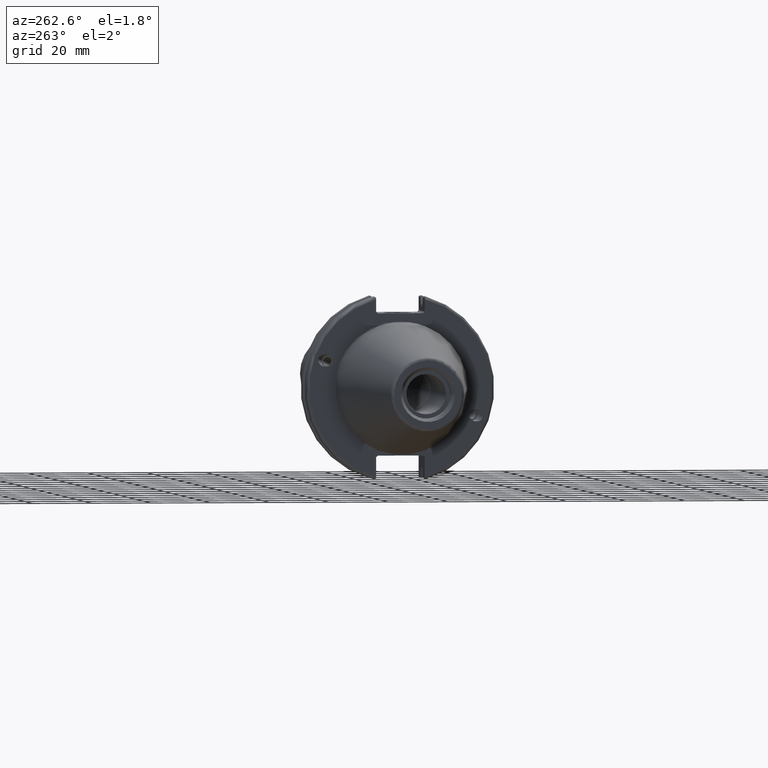
[diagram: clean part render]
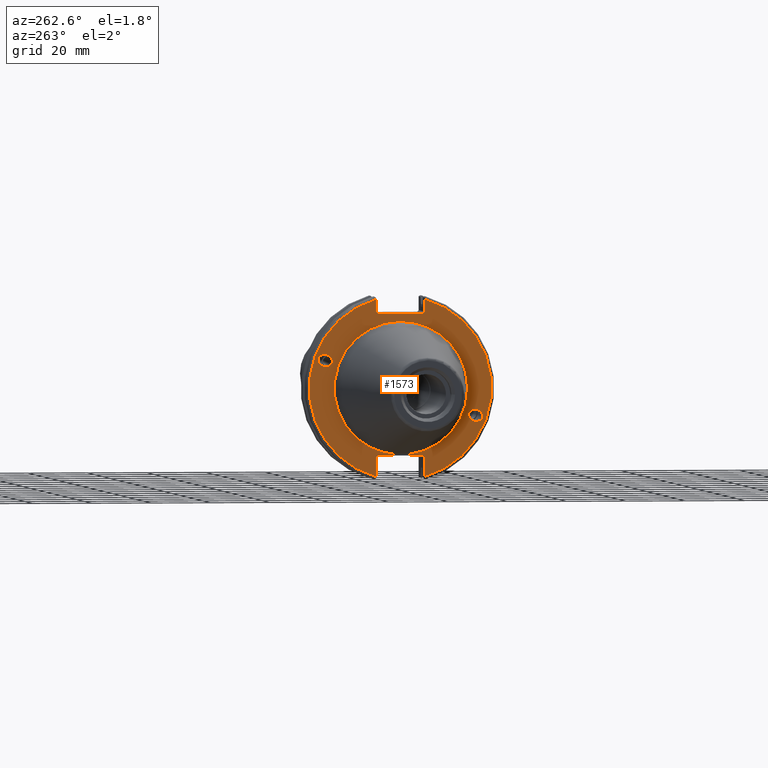
[diagram: same view with one face highlighted and labeled with its STEP entity id]
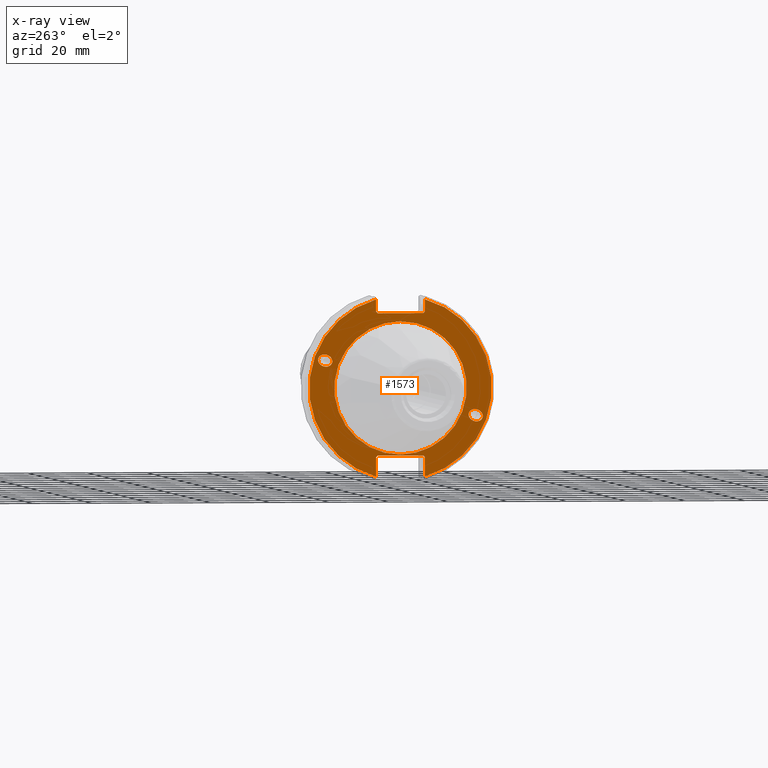
[diagram: x-ray of the same camera — body ghosted, the highlighted face saturated]
A machine part, auxiliary view. The second image highlights one B-rep face of the part: STEP entity #1573.
The next image is the same camera in x-ray: the body ghosted, the highlighted face saturated — about 0% of this face is hidden behind the body in this view.
In plain terms, the highlighted planar face has unit normal (-1, 0, 0).
Its self-contained STEP definition (entity closure, byte-faithful):
#48=PLANE('',#1751);
#85=FACE_BOUND('',#322,.T.);
#86=FACE_BOUND('',#323,.T.);
#87=FACE_BOUND('',#324,.T.);
#132=ELLIPSE('',#1702,2.44154917752292,2.00000000000001);
#141=ELLIPSE('',#1745,2.44154917752292,2.00000000000001);
#219=FACE_OUTER_BOUND('',#321,.T.);
#321=EDGE_LOOP('',(#1260,#1261,#1262,#1263,#1264,#1265,#1266,#1267,#1268,
#1269,#1270,#1271));
#322=EDGE_LOOP('',(#1272));
#323=EDGE_LOOP('',(#1273));
#324=EDGE_LOOP('',(#1274));
#417=LINE('',#2753,#517);
#418=LINE('',#2755,#518);
#419=LINE('',#2757,#519);
#420=LINE('',#2759,#520);
#421=LINE('',#2761,#521);
#422=LINE('',#2765,#522);
#423=LINE('',#2767,#523);
#424=LINE('',#2769,#524);
#425=LINE('',#2771,#525);
#426=LINE('',#2772,#526);
#517=VECTOR('',#2091,10.);
#518=VECTOR('',#2092,10.);
#519=VECTOR('',#2093,10.);
#520=VECTOR('',#2094,10.);
#521=VECTOR('',#2095,10.);
#522=VECTOR('',#2098,10.);
#523=VECTOR('',#2099,10.);
#524=VECTOR('',#2100,10.);
#525=VECTOR('',#2101,10.);
#526=VECTOR('',#2102,10.);
#616=CIRCLE('',#1749,22.3);
#618=CIRCLE('',#1752,30.75);
#619=CIRCLE('',#1753,30.75);
#692=VERTEX_POINT('',#2554);
#732=VERTEX_POINT('',#2737);
#735=VERTEX_POINT('',#2744);
#736=VERTEX_POINT('',#2749);
#737=VERTEX_POINT('',#2750);
#738=VERTEX_POINT('',#2752);
#739=VERTEX_POINT('',#2754);
#740=VERTEX_POINT('',#2756);
#741=VERTEX_POINT('',#2758);
#742=VERTEX_POINT('',#2760);
#743=VERTEX_POINT('',#2762);
#744=VERTEX_POINT('',#2764);
#745=VERTEX_POINT('',#2766);
#746=VERTEX_POINT('',#2768);
#747=VERTEX_POINT('',#2770);
#869=EDGE_CURVE('',#692,#692,#132,.T.);
#925=EDGE_CURVE('',#732,#732,#141,.T.);
#928=EDGE_CURVE('',#735,#735,#616,.T.);
#930=EDGE_CURVE('',#736,#737,#618,.T.);
#931=EDGE_CURVE('',#736,#738,#417,.T.);
#932=EDGE_CURVE('',#739,#738,#418,.T.);
#933=EDGE_CURVE('',#739,#740,#419,.T.);
#934=EDGE_CURVE('',#741,#740,#420,.T.);
#935=EDGE_CURVE('',#741,#742,#421,.T.);
#936=EDGE_CURVE('',#743,#742,#619,.T.);
#937=EDGE_CURVE('',#743,#744,#422,.T.);
#938=EDGE_CURVE('',#745,#744,#423,.T.);
#939=EDGE_CURVE('',#745,#746,#424,.T.);
#940=EDGE_CURVE('',#747,#746,#425,.T.);
#941=EDGE_CURVE('',#747,#737,#426,.T.);
#1260=ORIENTED_EDGE('',*,*,#930,.F.);
#1261=ORIENTED_EDGE('',*,*,#931,.T.);
#1262=ORIENTED_EDGE('',*,*,#932,.F.);
#1263=ORIENTED_EDGE('',*,*,#933,.T.);
#1264=ORIENTED_EDGE('',*,*,#934,.F.);
#1265=ORIENTED_EDGE('',*,*,#935,.T.);
#1266=ORIENTED_EDGE('',*,*,#936,.F.);
#1267=ORIENTED_EDGE('',*,*,#937,.T.);
#1268=ORIENTED_EDGE('',*,*,#938,.F.);
#1269=ORIENTED_EDGE('',*,*,#939,.T.);
#1270=ORIENTED_EDGE('',*,*,#940,.F.);
#1271=ORIENTED_EDGE('',*,*,#941,.T.);
#1272=ORIENTED_EDGE('',*,*,#869,.T.);
#1273=ORIENTED_EDGE('',*,*,#925,.T.);
#1274=ORIENTED_EDGE('',*,*,#928,.F.);
#1573=ADVANCED_FACE('',(#219,#85,#86,#87),#48,.T.);
#1702=AXIS2_PLACEMENT_3D('',#2556,#1972,#1973);
#1745=AXIS2_PLACEMENT_3D('',#2739,#2075,#2076);
#1749=AXIS2_PLACEMENT_3D('',#2746,#2083,#2084);
#1751=AXIS2_PLACEMENT_3D('',#2748,#2087,#2088);
#1752=AXIS2_PLACEMENT_3D('',#2751,#2089,#2090);
#1753=AXIS2_PLACEMENT_3D('',#2763,#2096,#2097);
#1972=DIRECTION('center_axis',(1.,0.,0.));
#1973=DIRECTION('ref_axis',(5.68400912649E-17,-0.939692620785909,-0.342020143325667));
#2075=DIRECTION('center_axis',(1.,0.,0.));
#2076=DIRECTION('ref_axis',(5.68400912649E-17,0.939692620785909,0.342020143325667));
#2083=DIRECTION('center_axis',(-1.,0.,0.));
#2084=DIRECTION('ref_axis',(0.,-1.,1.83697019872103E-16));
#2087=DIRECTION('center_axis',(-1.,0.,0.));
#2088=DIRECTION('ref_axis',(0.,0.,1.));
#2089=DIRECTION('center_axis',(1.,0.,0.));
#2090=DIRECTION('ref_axis',(0.,-1.,1.60812264967664E-16));
#2091=DIRECTION('',(0.,0.,-1.));
#2092=DIRECTION('',(0.,-0.70710678118655,0.707106781186545));
#2093=DIRECTION('',(0.,1.,0.));
#2094=DIRECTION('',(0.,-0.707106781186549,-0.707106781186546));
#2095=DIRECTION('',(0.,0.,1.));
#2096=DIRECTION('center_axis',(1.,0.,0.));
#2097=DIRECTION('ref_axis',(0.,1.,1.60812264967664E-16));
#2098=DIRECTION('',(0.,0.,1.));
#2099=DIRECTION('',(0.,0.707106781186549,-0.707106781186546));
#2100=DIRECTION('',(0.,-1.,0.));
#2101=DIRECTION('',(0.,0.707106781186549,0.707106781186546));
#2102=DIRECTION('',(0.,0.,-1.));
#2554=CARTESIAN_POINT('',(3.175,-23.0773950158153,-8.39948487016));
#2556=CARTESIAN_POINT('Origin',(3.175,-25.3717007612195,-9.23454386979305));
#2737=CARTESIAN_POINT('',(3.175,23.0773950158153,8.39948487016));
#2739=CARTESIAN_POINT('Origin',(3.175,25.3717007612195,9.23454386979306));
#2744=CARTESIAN_POINT('',(3.175,-2.7309623620986E-15,22.3));
#2746=CARTESIAN_POINT('Origin',(3.175,0.,0.));
#2748=CARTESIAN_POINT('Origin',(3.175,31.75,0.));
#2749=CARTESIAN_POINT('',(3.175,-8.18999999999999,29.6392712461019));
#2750=CARTESIAN_POINT('',(3.175,-8.19,-29.6392712461019));
#2751=CARTESIAN_POINT('Origin',(3.175,0.,0.));
#2752=CARTESIAN_POINT('',(3.175,-8.18999999999999,25.5));
#2753=CARTESIAN_POINT('',(3.175,-8.18999999999999,12.5));
#2754=CARTESIAN_POINT('',(3.175,-7.68999999999999,25.));
#2755=CARTESIAN_POINT('',(3.175,8.29500000000007,9.01500000000004));
#2756=CARTESIAN_POINT('',(3.175,7.69,25.));
#2757=CARTESIAN_POINT('',(3.175,15.875,25.));
#2758=CARTESIAN_POINT('',(3.175,8.19,25.5));
#2759=CARTESIAN_POINT('',(3.175,7.58000000000002,24.89));
#2760=CARTESIAN_POINT('',(3.175,8.19,29.6392712461019));
#2761=CARTESIAN_POINT('',(3.175,8.19,12.5));
#2762=CARTESIAN_POINT('',(3.175,8.18999999999999,-29.6392712461019));
#2763=CARTESIAN_POINT('Origin',(3.175,0.,0.));
#2764=CARTESIAN_POINT('',(3.175,8.18999999999999,-23.1));
#2765=CARTESIAN_POINT('',(3.175,8.18999999999999,-11.3));
#2766=CARTESIAN_POINT('',(3.175,7.69,-22.6));
#2767=CARTESIAN_POINT('',(3.175,8.18000000000002,-23.09));
#2768=CARTESIAN_POINT('',(3.175,-7.69,-22.6));
#2769=CARTESIAN_POINT('',(3.175,15.875,-22.6));
#2770=CARTESIAN_POINT('',(3.175,-8.19,-23.1));
#2771=CARTESIAN_POINT('',(3.175,7.69500000000004,-7.21500000000002));
#2772=CARTESIAN_POINT('',(3.175,-8.19,-11.3));